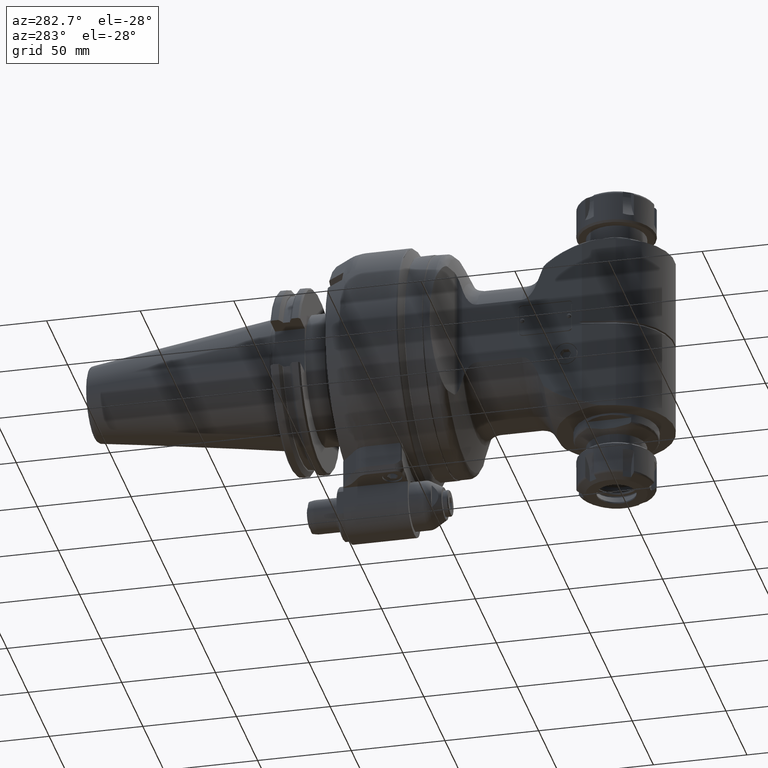
[diagram: clean part render]
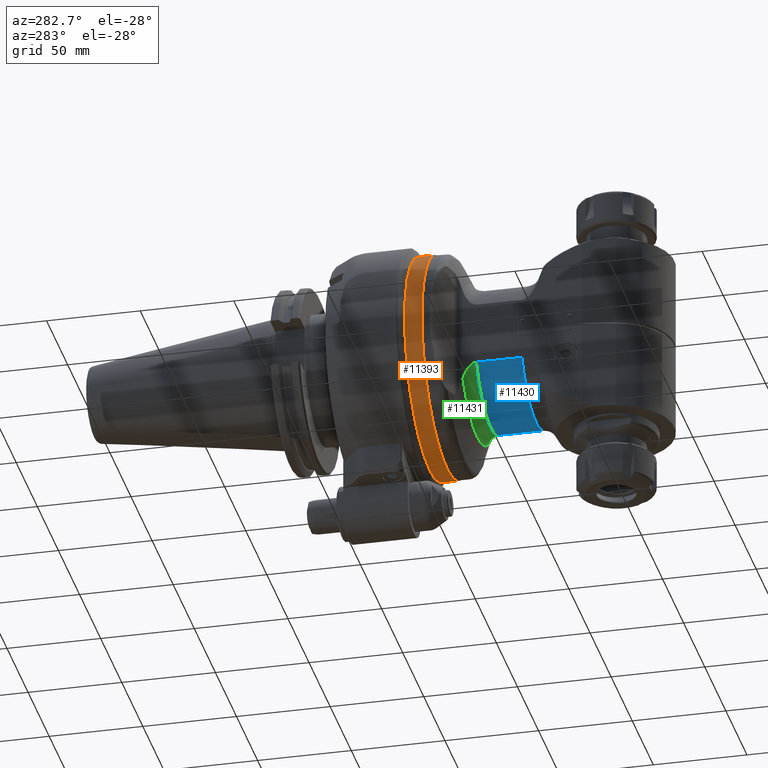
[diagram: same view with three faces highlighted in distinct colors, each labeled with its STEP entity id]
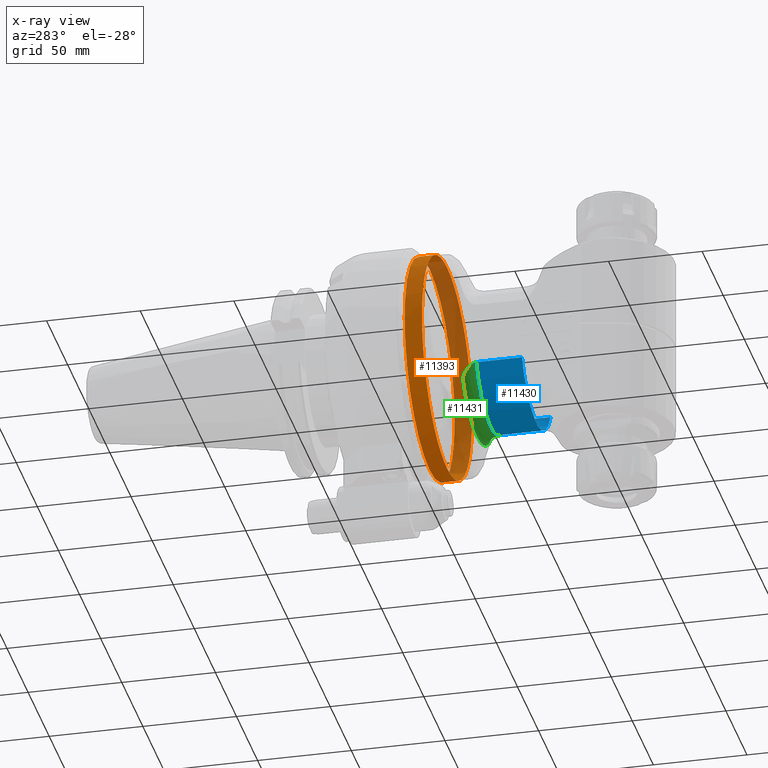
[diagram: x-ray of the same camera — body ghosted, the three highlighted faces saturated]
A machine part, auxiliary view with three faces highlighted in distinct colors.
The next image is the same camera in x-ray (body ghosted, the three faces saturated) — at least one of them is partly hidden behind the body in this view.
Their STEP definitions:

[orange] entity #11393 — the highlighted cylindrical surface (bore or boss wall) has radius 59.2 mm, axis along (0, -1, -0).
#495=CYLINDRICAL_SURFACE('',#12187,59.2);
#933=CIRCLE('',#12186,59.2);
#934=CIRCLE('',#12188,59.2);
#1569=FACE_OUTER_BOUND('',#2288,.T.);
#2288=EDGE_LOOP('',(#7602,#7603,#7604,#7605));
#3107=LINE('',#17257,#3860);
#3860=VECTOR('',#13683,59.2);
#4622=VERTEX_POINT('',#17252);
#4623=VERTEX_POINT('',#17255);
#5791=EDGE_CURVE('',#4622,#4622,#933,.T.);
#5792=EDGE_CURVE('',#4623,#4623,#934,.T.);
#5793=EDGE_CURVE('',#4623,#4622,#3107,.T.);
#7602=ORIENTED_EDGE('',*,*,#5792,.T.);
#7603=ORIENTED_EDGE('',*,*,#5793,.T.);
#7604=ORIENTED_EDGE('',*,*,#5791,.F.);
#7605=ORIENTED_EDGE('',*,*,#5793,.F.);
#11393=ADVANCED_FACE('',(#1569),#495,.T.);
#12186=AXIS2_PLACEMENT_3D('',#17253,#13677,#13678);
#12187=AXIS2_PLACEMENT_3D('',#17254,#13679,#13680);
#12188=AXIS2_PLACEMENT_3D('',#17256,#13681,#13682);
#13677=DIRECTION('center_axis',(-1.,0.,0.));
#13678=DIRECTION('ref_axis',(0.,1.,0.));
#13679=DIRECTION('center_axis',(1.,0.,0.));
#13680=DIRECTION('ref_axis',(0.,1.,0.));
#13681=DIRECTION('center_axis',(-1.,0.,0.));
#13682=DIRECTION('ref_axis',(0.,1.,0.));
#13683=DIRECTION('',(-1.,0.,0.));
#17252=CARTESIAN_POINT('',(178.263097,-59.2,-2.937502093422E-13));
#17253=CARTESIAN_POINT('Origin',(178.263097,0.,0.));
#17254=CARTESIAN_POINT('Origin',(-91.79325980233,0.,0.));
#17255=CARTESIAN_POINT('',(187.563097,-59.2,-2.935725736582E-13));
#17256=CARTESIAN_POINT('Origin',(187.563097,0.,0.));
#17257=CARTESIAN_POINT('',(-91.79325980233,-59.2,-7.24990905095233E-15));

[blue] entity #11430 — the highlighted cylindrical surface (partial cylindrical patch) has radius 38 mm, axis along (-0, 1, 0).
#498=CYLINDRICAL_SURFACE('',#12274,38.);
#975=CIRCLE('',#12273,38.);
#976=CIRCLE('',#12275,38.);
#1606=FACE_OUTER_BOUND('',#2331,.T.);
#2331=EDGE_LOOP('',(#7839,#7840,#7841,#7842));
#3112=LINE('',#17462,#3865);
#3138=LINE('',#17812,#3891);
#3865=VECTOR('',#13734,24.26012419518);
#3891=VECTOR('',#13818,24.26012419529);
#4651=VERTEX_POINT('',#17446);
#4652=VERTEX_POINT('',#17461);
#4723=VERTEX_POINT('',#17794);
#4724=VERTEX_POINT('',#17811);
#5827=EDGE_CURVE('',#4652,#4651,#3112,.T.);
#5914=EDGE_CURVE('',#4724,#4723,#3138,.T.);
#5944=EDGE_CURVE('',#4724,#4651,#975,.T.);
#5945=EDGE_CURVE('',#4652,#4723,#976,.T.);
#7839=ORIENTED_EDGE('',*,*,#5944,.F.);
#7840=ORIENTED_EDGE('',*,*,#5914,.T.);
#7841=ORIENTED_EDGE('',*,*,#5945,.F.);
#7842=ORIENTED_EDGE('',*,*,#5827,.T.);
#11430=ADVANCED_FACE('',(#1606),#498,.T.);
#12273=AXIS2_PLACEMENT_3D('',#17903,#13887,#13888);
#12274=AXIS2_PLACEMENT_3D('',#17904,#13889,#13890);
#12275=AXIS2_PLACEMENT_3D('',#17905,#13891,#13892);
#13734=DIRECTION('',(1.,0.,0.));
#13818=DIRECTION('',(-1.,-6.087615481227E-13,-3.040146677659E-13));
#13887=DIRECTION('center_axis',(1.,0.,0.));
#13888=DIRECTION('ref_axis',(0.,0.44659375653888,-0.894736842105259));
#13889=DIRECTION('center_axis',(-1.,0.,0.));
#13890=DIRECTION('ref_axis',(0.,1.,0.));
#13891=DIRECTION('center_axis',(-1.,0.,0.));
#13892=DIRECTION('ref_axis',(0.,1.,0.));
#17446=CARTESIAN_POINT('',(235.2122440389,16.97056274848,34.));
#17461=CARTESIAN_POINT('',(210.9521198437,16.97056274848,34.));
#17462=CARTESIAN_POINT('',(210.9521198437,16.97056274848,34.));
#17794=CARTESIAN_POINT('',(210.9521198437,16.97056274848,-34.));
#17811=CARTESIAN_POINT('',(235.2122440389,16.97056274848,-34.));
#17812=CARTESIAN_POINT('',(235.2122440389,16.97056274848,-34.));
#17903=CARTESIAN_POINT('Origin',(235.2122440389,0.,0.));
#17904=CARTESIAN_POINT('Origin',(202.088375936,0.,0.));
#17905=CARTESIAN_POINT('Origin',(210.9521198437,0.,0.));

[green] entity #11431 — the highlighted toroidal blend (fillet) surface has major radius 46 mm and minor (blend) radius 8 mm.
#186=B_SPLINE_CURVE_WITH_KNOTS('',3,(#17464,#17465,#17466,#17467,#17468,
#17469,#17470,#17471,#17472,#17473,#17474,#17475,#17476,#17477,#17478,#17479),
 .UNSPECIFIED.,.F.,.F.,(4,2,2,2,2,2,2,4),(-4.18910937132057,-4.17135447383444,
-3.91846915486092,-3.66558383588739,-3.4787538185637,-3.29192380124001,
-3.16453283287773,-3.05573251034379),.UNSPECIFIED.);
#195=B_SPLINE_CURVE_WITH_KNOTS('',3,(#17795,#17796,#17797,#17798,#17799,
#17800,#17801,#17802,#17803,#17804,#17805,#17806,#17807,#17808,#17809,#17810),
 .UNSPECIFIED.,.F.,.F.,(4,2,2,2,2,2,2,4),(-3.05573251034379,-2.94693218780986,
-2.81954121944757,-2.63271120212388,-2.4458811848002,-2.19299586582667,
-1.94011054685314,-1.92235564936744),.UNSPECIFIED.);
#382=TOROIDAL_SURFACE('',#12276,46.,8.);
#976=CIRCLE('',#12275,38.);
#977=CIRCLE('',#12277,42.61905390607);
#1607=FACE_OUTER_BOUND('',#2332,.T.);
#2332=EDGE_LOOP('',(#7843,#7844,#7845,#7846));
#4652=VERTEX_POINT('',#17461);
#4653=VERTEX_POINT('',#17463);
#4722=VERTEX_POINT('',#17790);
#4723=VERTEX_POINT('',#17794);
#5828=EDGE_CURVE('',#4653,#4652,#186,.T.);
#5913=EDGE_CURVE('',#4723,#4722,#195,.T.);
#5945=EDGE_CURVE('',#4652,#4723,#976,.T.);
#5946=EDGE_CURVE('',#4722,#4653,#977,.T.);
#7843=ORIENTED_EDGE('',*,*,#5946,.T.);
#7844=ORIENTED_EDGE('',*,*,#5828,.T.);
#7845=ORIENTED_EDGE('',*,*,#5945,.T.);
#7846=ORIENTED_EDGE('',*,*,#5913,.T.);
#11431=ADVANCED_FACE('',(#1607),#382,.F.);
#12275=AXIS2_PLACEMENT_3D('',#17905,#13891,#13892);
#12276=AXIS2_PLACEMENT_3D('',#17906,#13893,#13894);
#12277=AXIS2_PLACEMENT_3D('',#17907,#13895,#13896);
#13891=DIRECTION('center_axis',(-1.,0.,0.));
#13892=DIRECTION('ref_axis',(0.,1.,0.));
#13893=DIRECTION('center_axis',(-1.,0.,0.));
#13894=DIRECTION('ref_axis',(0.,0.,1.));
#13895=DIRECTION('center_axis',(1.,0.,0.));
#13896=DIRECTION('ref_axis',(0.,0.602968185274902,-0.797765233352702));
#17461=CARTESIAN_POINT('',(210.9521198437,16.97056274848,34.));
#17463=CARTESIAN_POINT('',(203.701657532569,25.6979329826564,33.9999999850205));
#17464=CARTESIAN_POINT('Ctrl Pts',(203.701657527398,25.6979329812024,34.));
#17465=CARTESIAN_POINT('Ctrl Pts',(203.717880341757,25.6402351790415,34.));
#17466=CARTESIAN_POINT('Ctrl Pts',(203.734255443667,25.5829565211873,34.));
#17467=CARTESIAN_POINT('Ctrl Pts',(203.985917934121,24.7166356546219,34.));
#17468=CARTESIAN_POINT('Ctrl Pts',(204.295790524545,23.8439416682403,34.));
#17469=CARTESIAN_POINT('Ctrl Pts',(205.041213079382,22.1555959983674,34.));
#17470=CARTESIAN_POINT('Ctrl Pts',(205.477048966678,21.3400705673323,34.));
#17471=CARTESIAN_POINT('Ctrl Pts',(206.270623996535,20.1077689382488,34.));
#17472=CARTESIAN_POINT('Ctrl Pts',(206.674401664489,19.555304351645,34.));
#17473=CARTESIAN_POINT('Ctrl Pts',(207.580207465488,18.5465996865153,34.));
#17474=CARTESIAN_POINT('Ctrl Pts',(208.083318701176,18.0913327478181,34.));
#17475=CARTESIAN_POINT('Ctrl Pts',(208.95582872201,17.5118675579488,34.));
#17476=CARTESIAN_POINT('Ctrl Pts',(209.410012247592,17.2808423077824,34.));
#17477=CARTESIAN_POINT('Ctrl Pts',(210.160088938658,17.041608064786,34.));
#17478=CARTESIAN_POINT('Ctrl Pts',(210.58945210192,16.9705627484771,34.));
#17479=CARTESIAN_POINT('Ctrl Pts',(210.9521198437,16.9705627484771,34.));
#17790=CARTESIAN_POINT('',(203.70165753257,25.6979329826522,-33.9999999850214));
#17794=CARTESIAN_POINT('',(210.9521198437,16.97056274848,-34.));
#17795=CARTESIAN_POINT('Ctrl Pts',(210.9521198437,16.9705627484771,-34.));
#17796=CARTESIAN_POINT('Ctrl Pts',(210.58945210192,16.9705627484771,-34.));
#17797=CARTESIAN_POINT('Ctrl Pts',(210.160088938658,17.041608064786,-34.));
#17798=CARTESIAN_POINT('Ctrl Pts',(209.410012247592,17.2808423077824,-34.));
#17799=CARTESIAN_POINT('Ctrl Pts',(208.95582872201,17.5118675579488,-34.));
#17800=CARTESIAN_POINT('Ctrl Pts',(208.083318701176,18.0913327478181,-34.));
#17801=CARTESIAN_POINT('Ctrl Pts',(207.580207465488,18.5465996865153,-34.));
#17802=CARTESIAN_POINT('Ctrl Pts',(206.674401664489,19.555304351645,-34.));
#17803=CARTESIAN_POINT('Ctrl Pts',(206.270623996535,20.1077689382488,-34.));
#17804=CARTESIAN_POINT('Ctrl Pts',(205.477048966678,21.3400705673323,-34.));
#17805=CARTESIAN_POINT('Ctrl Pts',(205.041213079382,22.1555959983674,-34.));
#17806=CARTESIAN_POINT('Ctrl Pts',(204.295790524545,23.8439416682403,-34.));
#17807=CARTESIAN_POINT('Ctrl Pts',(203.985917934121,24.7166356546219,-34.));
#17808=CARTESIAN_POINT('Ctrl Pts',(203.734255443668,25.5829565211859,-34.));
#17809=CARTESIAN_POINT('Ctrl Pts',(203.717880341758,25.6402351790387,-34.));
#17810=CARTESIAN_POINT('Ctrl Pts',(203.701657527399,25.6979329811983,-34.));
#17905=CARTESIAN_POINT('Origin',(210.9521198437,0.,0.));
#17906=CARTESIAN_POINT('Origin',(210.9521198437,0.,0.));
#17907=CARTESIAN_POINT('Origin',(203.7016575474,0.,0.));